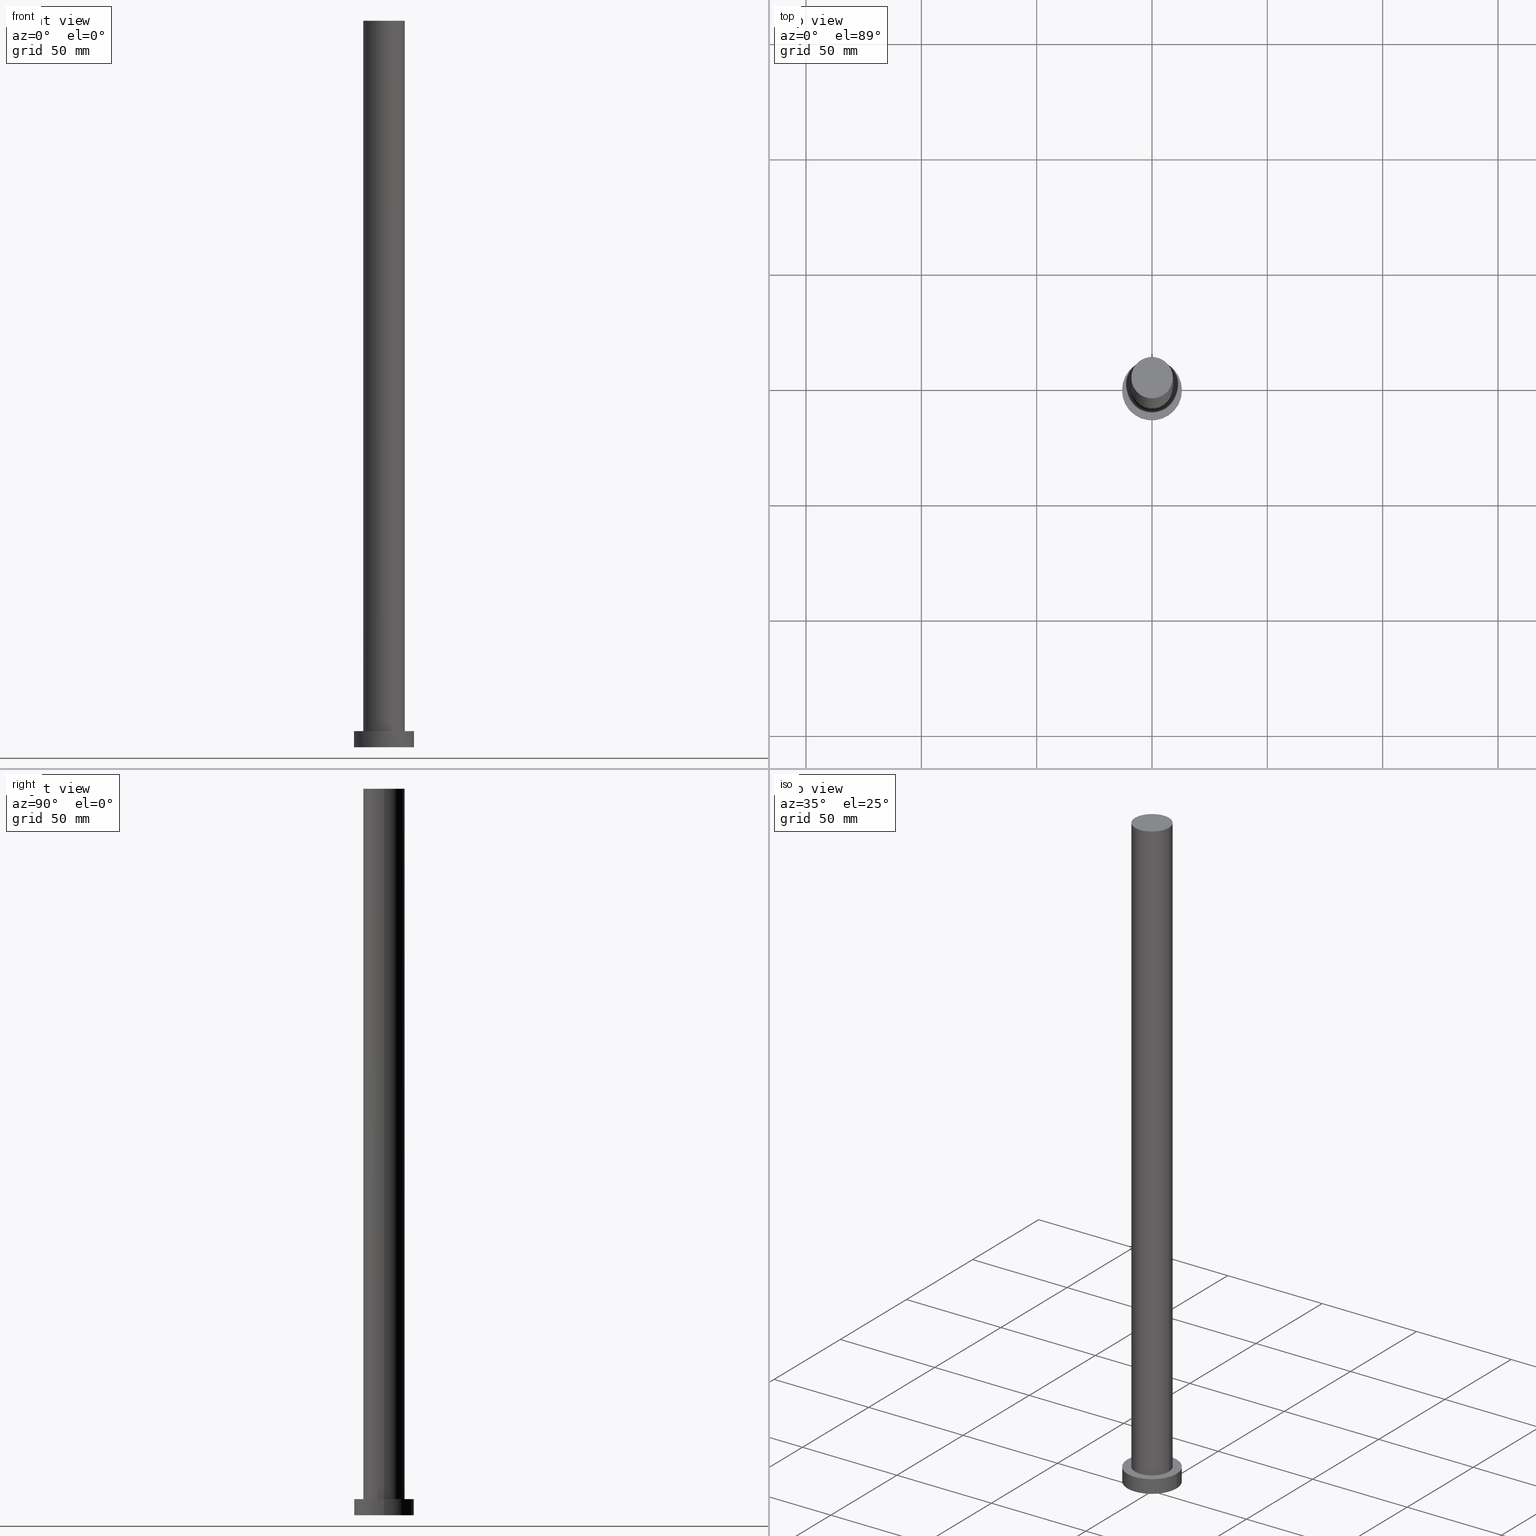
[diagram: canonical four-view strip — front | top / right | iso, engineering-drawing reading convention]
A machine part, canonical four-view strip (front | top / right | iso — engineering-drawing reading convention). The complete STEP part file that produces these views, byte-faithful:
ISO-10303-21;
HEADER;
FILE_DESCRIPTION (( 'STEP AP203' ),
    '1' );
FILE_NAME ('8545.STEP',
    '2023-02-13T08:43:15',
    ( '' ),
    ( '' ),
    'SwSTEP 2.0',
    'SolidWorks 2019',
    '' );
FILE_SCHEMA (( 'CONFIG_CONTROL_DESIGN' ));
ENDSEC;

DATA;
#1 = LOCAL_TIME ( 9, 43, 15.00000000000000000, #219 ) ;
#2 = CARTESIAN_POINT ( 'NONE',  ( 0.000000000000000000, 0.000000000000000000, 315.0000000000000000 ) ) ;
#3 = DIRECTION ( 'NONE',  ( 1.000000000000000000, 0.000000000000000000, 0.000000000000000000 ) ) ;
#4 = EDGE_CURVE ( 'NONE', #12, #50, #121, .T. ) ;
#5 = CARTESIAN_POINT ( 'NONE',  ( 0.000000000000000000, 0.000000000000000000, 7.000000000000000000 ) ) ;
#6 = LOCAL_TIME ( 9, 43, 15.00000000000000000, #26 ) ;
#7 = CARTESIAN_POINT ( 'NONE',  ( 0.000000000000000000, 0.000000000000000000, 7.000000000000000000 ) ) ;
#8 = UNCERTAINTY_MEASURE_WITH_UNIT (LENGTH_MEASURE( 1.000000000000000082E-05 ), #141, 'distance_accuracy_value', 'NONE');
#9 = APPLICATION_PROTOCOL_DEFINITION ( 'international standard', 'config_control_design', 1994, #27 ) ;
#10 = DIRECTION ( 'NONE',  ( 1.000000000000000000, 0.000000000000000000, 0.000000000000000000 ) ) ;
#11 = CARTESIAN_POINT ( 'NONE',  ( 9.000000000000000000, 1.102182119232617714E-15, 315.0000000000000000 ) ) ;
#12 = VERTEX_POINT ( 'NONE', #238 ) ;
#13 = AXIS2_PLACEMENT_3D ( 'NONE', #117, #249, #186 ) ;
#14 = DIRECTION ( 'NONE',  ( 0.000000000000000000, 0.000000000000000000, 1.000000000000000000 ) ) ;
#15 = SHAPE_DEFINITION_REPRESENTATION ( #122, #41 ) ;
#16 = ORIENTED_EDGE ( 'NONE', *, *, #176, .F. ) ;
#17 = DATE_TIME_ROLE ( 'classification_date' ) ;
#18 = ORIENTED_EDGE ( 'NONE', *, *, #107, .F. ) ;
#19 = AXIS2_PLACEMENT_3D ( 'NONE', #134, #165, #208 ) ;
#20 = LOCAL_TIME ( 9, 43, 15.00000000000000000, #151 ) ;
#21 = CARTESIAN_POINT ( 'NONE',  ( 0.000000000000000000, 0.000000000000000000, 0.000000000000000000 ) ) ;
#22 = VERTEX_POINT ( 'NONE', #43 ) ;
#23 = PERSON_AND_ORGANIZATION_ROLE ( 'creator' ) ;
#24 = CYLINDRICAL_SURFACE ( 'NONE', #60, 9.000000000000000000 ) ;
#25 = CARTESIAN_POINT ( 'NONE',  ( -13.00000000000000178, 0.000000000000000000, 7.000000000000000000 ) ) ;
#26 = COORDINATED_UNIVERSAL_TIME_OFFSET ( 1, 0, .AHEAD. ) ;
#27 = APPLICATION_CONTEXT ( 'configuration controlled 3d designs of mechanical parts and assemblies' ) ;
#28 = APPROVAL ( #130, 'NEUR�EN�' ) ;
#29 = CYLINDRICAL_SURFACE ( 'NONE', #91, 9.000000000000000000 ) ;
#30 = PERSON_AND_ORGANIZATION ( #52, #212 ) ;
#31 = DIRECTION ( 'NONE',  ( 1.000000000000000000, 0.000000000000000000, -0.000000000000000000 ) ) ;
#32 = DIRECTION ( 'NONE',  ( 0.000000000000000000, 0.000000000000000000, 1.000000000000000000 ) ) ;
#33 = PRODUCT_DEFINITION_FORMATION_WITH_SPECIFIED_SOURCE ( 'LIBOVOLN�', '', #158, .NOT_KNOWN. ) ;
#34 = ADVANCED_FACE ( 'NONE', ( #202 ), #24, .T. ) ;
#35 = CIRCLE ( 'NONE', #172, 13.00000000000000178 ) ;
#36 = EDGE_CURVE ( 'NONE', #149, #22, #35, .T. ) ;
#37 = ORIENTED_EDGE ( 'NONE', *, *, #204, .F. ) ;
#38 = ORIENTED_EDGE ( 'NONE', *, *, #197, .F. ) ;
#39 = DIRECTION ( 'NONE',  ( 0.000000000000000000, 0.000000000000000000, 1.000000000000000000 ) ) ;
#40 = DATE_AND_TIME ( #127, #1 ) ;
#41 = ADVANCED_BREP_SHAPE_REPRESENTATION ( '8545', ( #233, #200 ), #98 ) ;
#42 = AXIS2_PLACEMENT_3D ( 'NONE', #118, #76, #232 ) ;
#43 = CARTESIAN_POINT ( 'NONE',  ( 13.00000000000000178, 1.592040838891559293E-15, 0.000000000000000000 ) ) ;
#44 = DIRECTION ( 'NONE',  ( 1.000000000000000000, 0.000000000000000000, -0.000000000000000000 ) ) ;
#45 = LINE ( 'NONE', #11, #80 ) ;
#46 = ORIENTED_EDGE ( 'NONE', *, *, #4, .F. ) ;
#47 = EDGE_CURVE ( 'NONE', #189, #12, #160, .T. ) ;
#48 = APPROVAL_DATE_TIME ( #57, #109 ) ;
#49 = CARTESIAN_POINT ( 'NONE',  ( -13.00000000000000178, 0.000000000000000000, 7.000000000000000000 ) ) ;
#50 = VERTEX_POINT ( 'NONE', #111 ) ;
#51 = PERSON_AND_ORGANIZATION ( #52, #212 ) ;
#52 = PERSON ( 'NEUR�EN�', 'NEUR�EN�', 'NEUR�EN�', ('NEUR�EN�'), ('NEUR�EN�'), ('NEUR�EN�') ) ;
#53 = DIRECTION ( 'NONE',  ( -1.000000000000000000, 0.000000000000000000, 0.000000000000000000 ) ) ;
#54 = PERSON_AND_ORGANIZATION ( #52, #212 ) ;
#55 = DIRECTION ( 'NONE',  ( 0.000000000000000000, 0.000000000000000000, 1.000000000000000000 ) ) ;
#56 = EDGE_LOOP ( 'NONE', ( #179, #16 ) ) ;
#57 = DATE_AND_TIME ( #231, #6 ) ;
#58 = ORIENTED_EDGE ( 'NONE', *, *, #107, .T. ) ;
#59 = CC_DESIGN_APPROVAL ( #28, ( #77 ) ) ;
#60 = AXIS2_PLACEMENT_3D ( 'NONE', #2, #196, #104 ) ;
#61 = ORIENTED_EDGE ( 'NONE', *, *, #47, .T. ) ;
#62 = MECHANICAL_CONTEXT ( 'NONE', #142, 'mechanical' ) ;
#63 = DIRECTION ( 'NONE',  ( 1.000000000000000000, 0.000000000000000000, 0.000000000000000000 ) ) ;
#64 = CIRCLE ( 'NONE', #168, 9.000000000000000000 ) ;
#65 = APPLICATION_PROTOCOL_DEFINITION ( 'international standard', 'config_control_design', 1994, #142 ) ;
#66 = CARTESIAN_POINT ( 'NONE',  ( -9.000000000000000000, 0.000000000000000000, 315.0000000000000000 ) ) ;
#67 = CC_DESIGN_APPROVAL ( #193, ( #33 ) ) ;
#68 = CARTESIAN_POINT ( 'NONE',  ( 9.000000000000000000, 1.102182119232617714E-15, 315.0000000000000000 ) ) ;
#69 = FACE_BOUND ( 'NONE', #138, .T. ) ;
#70 = PLANE ( 'NONE',  #19 ) ;
#71 = VECTOR ( 'NONE', #84, 1000.000000000000000 ) ;
#72 = PRODUCT_RELATED_PRODUCT_CATEGORY ( 'detail', '', ( #158 ) ) ;
#73 = DIRECTION ( 'NONE',  ( -0.000000000000000000, -0.000000000000000000, -1.000000000000000000 ) ) ;
#74 = DIRECTION ( 'NONE',  ( -0.000000000000000000, -0.000000000000000000, -1.000000000000000000 ) ) ;
#75 = PERSON_AND_ORGANIZATION_ROLE ( 'design_supplier' ) ;
#76 = DIRECTION ( 'NONE',  ( 0.000000000000000000, 0.000000000000000000, 1.000000000000000000 ) ) ;
#77 = PRODUCT_DEFINITION ( 'NEZN�M�', '', #33, #85 ) ;
#78 = EDGE_LOOP ( 'NONE', ( #38, #18, #116, #170 ) ) ;
#79 = ORIENTED_EDGE ( 'NONE', *, *, #159, .F. ) ;
#80 = VECTOR ( 'NONE', #94, 1000.000000000000000 ) ;
#81 = DIRECTION ( 'NONE',  ( 0.000000000000000000, 0.000000000000000000, 1.000000000000000000 ) ) ;
#82 = VERTEX_POINT ( 'NONE', #205 ) ;
#83 = PERSON_AND_ORGANIZATION_ROLE ( 'design_owner' ) ;
#84 = DIRECTION ( 'NONE',  ( -0.000000000000000000, -0.000000000000000000, -1.000000000000000000 ) ) ;
#85 = DESIGN_CONTEXT ( 'detailed design', #27, 'design' ) ;
#86 = PERSON_AND_ORGANIZATION ( #52, #212 ) ;
#87 = AXIS2_PLACEMENT_3D ( 'NONE', #93, #241, #228 ) ;
#88 = CARTESIAN_POINT ( 'NONE',  ( 0.000000000000000000, 0.000000000000000000, 7.000000000000000000 ) ) ;
#89 = AXIS2_PLACEMENT_3D ( 'NONE', #244, #14, #148 ) ;
#90 = COORDINATED_UNIVERSAL_TIME_OFFSET ( 1, 0, .AHEAD. ) ;
#91 = AXIS2_PLACEMENT_3D ( 'NONE', #115, #73, #53 ) ;
#92 = LINE ( 'NONE', #143, #234 ) ;
#93 = CARTESIAN_POINT ( 'NONE',  ( 0.000000000000000000, 0.000000000000000000, 7.000000000000000000 ) ) ;
#94 = DIRECTION ( 'NONE',  ( -0.000000000000000000, -0.000000000000000000, -1.000000000000000000 ) ) ;
#95 = AXIS2_PLACEMENT_3D ( 'NONE', #7, #181, #224 ) ;
#96 = VERTEX_POINT ( 'NONE', #113 ) ;
#97 = DIRECTION ( 'NONE',  ( -0.000000000000000000, -0.000000000000000000, -1.000000000000000000 ) ) ;
#98 =( GEOMETRIC_REPRESENTATION_CONTEXT ( 3 ) GLOBAL_UNCERTAINTY_ASSIGNED_CONTEXT ( ( #8 ) ) GLOBAL_UNIT_ASSIGNED_CONTEXT ( ( #141, #152, #192 ) ) REPRESENTATION_CONTEXT ( 'NONE', 'WORKASPACE' ) );
#99 = EDGE_LOOP ( 'NONE', ( #215, #171, #174, #46 ) ) ;
#100 = ORIENTED_EDGE ( 'NONE', *, *, #195, .T. ) ;
#101 = LOCAL_TIME ( 9, 43, 15.00000000000000000, #90 ) ;
#102 = EDGE_LOOP ( 'NONE', ( #255, #169, #139, #79 ) ) ;
#103 = SECURITY_CLASSIFICATION ( '', '', #229 ) ;
#104 = DIRECTION ( 'NONE',  ( -1.000000000000000000, 0.000000000000000000, 0.000000000000000000 ) ) ;
#105 = DIRECTION ( 'NONE',  ( 0.000000000000000000, 0.000000000000000000, 1.000000000000000000 ) ) ;
#106 = PERSON_AND_ORGANIZATION ( #52, #212 ) ;
#107 = EDGE_CURVE ( 'NONE', #156, #96, #140, .T. ) ;
#108 = APPROVAL_STATUS ( 'not_yet_approved' ) ;
#109 = APPROVAL ( #247, 'NEUR�EN�' ) ;
#110 = DATE_AND_TIME ( #124, #101 ) ;
#111 = CARTESIAN_POINT ( 'NONE',  ( -9.000000000000000000, 0.000000000000000000, 7.000000000000000000 ) ) ;
#112 = APPROVAL_ROLE ( '' ) ;
#113 = CARTESIAN_POINT ( 'NONE',  ( 13.00000000000000178, 1.592040838891559293E-15, 7.000000000000000000 ) ) ;
#114 = PERSON_AND_ORGANIZATION_ROLE ( 'creator' ) ;
#115 = CARTESIAN_POINT ( 'NONE',  ( 0.000000000000000000, 0.000000000000000000, 315.0000000000000000 ) ) ;
#116 = ORIENTED_EDGE ( 'NONE', *, *, #159, .T. ) ;
#117 = CARTESIAN_POINT ( 'NONE',  ( 0.000000000000000000, 0.000000000000000000, 7.000000000000000000 ) ) ;
#118 = CARTESIAN_POINT ( 'NONE',  ( 0.000000000000000000, 0.000000000000000000, 315.0000000000000000 ) ) ;
#119 = ADVANCED_FACE ( 'NONE', ( #128 ), #182, .T. ) ;
#120 = EDGE_LOOP ( 'NONE', ( #58, #223 ) ) ;
#121 = LINE ( 'NONE', #66, #71 ) ;
#122 = PRODUCT_DEFINITION_SHAPE ( 'NONE', 'NONE',  #77 ) ;
#123 = ADVANCED_FACE ( 'NONE', ( #135 ), #146, .T. ) ;
#124 = CALENDAR_DATE ( 2023, 13, 2 ) ;
#125 = APPROVAL_PERSON_ORGANIZATION ( #86, #28, #112 ) ;
#126 = EDGE_CURVE ( 'NONE', #82, #50, #210, .T. ) ;
#127 = CALENDAR_DATE ( 2023, 13, 2 ) ;
#128 = FACE_OUTER_BOUND ( 'NONE', #164, .T. ) ;
#129 = CC_DESIGN_PERSON_AND_ORGANIZATION_ASSIGNMENT ( #30, #75, ( #33 ) ) ;
#130 = APPROVAL_STATUS ( 'not_yet_approved' ) ;
#131 = DIRECTION ( 'NONE',  ( 1.000000000000000000, 0.000000000000000000, 0.000000000000000000 ) ) ;
#132 = LINE ( 'NONE', #49, #190 ) ;
#133 = CC_DESIGN_PERSON_AND_ORGANIZATION_ASSIGNMENT ( #106, #83, ( #158 ) ) ;
#134 = CARTESIAN_POINT ( 'NONE',  ( 0.000000000000000000, 0.000000000000000000, 7.000000000000000000 ) ) ;
#135 = FACE_OUTER_BOUND ( 'NONE', #78, .T. ) ;
#136 = AXIS2_PLACEMENT_3D ( 'NONE', #188, #32, #10 ) ;
#137 = AXIS2_PLACEMENT_3D ( 'NONE', #191, #163, #31 ) ;
#138 = EDGE_LOOP ( 'NONE', ( #144, #155 ) ) ;
#139 = ORIENTED_EDGE ( 'NONE', *, *, #176, .T. ) ;
#140 = CIRCLE ( 'NONE', #254, 13.00000000000000178 ) ;
#141 =( LENGTH_UNIT ( ) NAMED_UNIT ( * ) SI_UNIT ( .MILLI., .METRE. ) );
#142 = APPLICATION_CONTEXT ( 'configuration controlled 3d designs of mechanical parts and assemblies' ) ;
#143 = CARTESIAN_POINT ( 'NONE',  ( 13.00000000000000178, 1.592040838891559293E-15, 7.000000000000000000 ) ) ;
#144 = ORIENTED_EDGE ( 'NONE', *, *, #195, .F. ) ;
#145 = DIRECTION ( 'NONE',  ( 0.000000000000000000, 0.000000000000000000, 1.000000000000000000 ) ) ;
#146 = CYLINDRICAL_SURFACE ( 'NONE', #95, 13.00000000000000178 ) ;
#147 = DATE_AND_TIME ( #167, #175 ) ;
#148 = DIRECTION ( 'NONE',  ( 1.000000000000000000, 0.000000000000000000, 0.000000000000000000 ) ) ;
#149 = VERTEX_POINT ( 'NONE', #248 ) ;
#150 = FACE_OUTER_BOUND ( 'NONE', #56, .T. ) ;
#151 = COORDINATED_UNIVERSAL_TIME_OFFSET ( 1, 0, .AHEAD. ) ;
#152 =( NAMED_UNIT ( * ) PLANE_ANGLE_UNIT ( ) SI_UNIT ( $, .RADIAN. ) );
#153 = ADVANCED_FACE ( 'NONE', ( #226 ), #203, .T. ) ;
#154 = PERSON_AND_ORGANIZATION ( #52, #212 ) ;
#155 = ORIENTED_EDGE ( 'NONE', *, *, #126, .F. ) ;
#156 = VERTEX_POINT ( 'NONE', #25 ) ;
#157 = CC_DESIGN_DATE_AND_TIME_ASSIGNMENT ( #250, #17, ( #103 ) ) ;
#158 = PRODUCT ( '8545', '8545', '', ( #62 ) ) ;
#159 = EDGE_CURVE ( 'NONE', #156, #149, #132, .T. ) ;
#160 = CIRCLE ( 'NONE', #178, 9.000000000000000000 ) ;
#161 = DIRECTION ( 'NONE',  ( 0.000000000000000000, 0.000000000000000000, 1.000000000000000000 ) ) ;
#162 = FACE_OUTER_BOUND ( 'NONE', #209, .T. ) ;
#163 = DIRECTION ( 'NONE',  ( 0.000000000000000000, 0.000000000000000000, 1.000000000000000000 ) ) ;
#164 = EDGE_LOOP ( 'NONE', ( #253, #61 ) ) ;
#165 = DIRECTION ( 'NONE',  ( 0.000000000000000000, 0.000000000000000000, 1.000000000000000000 ) ) ;
#166 = CALENDAR_DATE ( 2023, 13, 2 ) ;
#167 = CALENDAR_DATE ( 2023, 13, 2 ) ;
#168 = AXIS2_PLACEMENT_3D ( 'NONE', #5, #161, #131 ) ;
#169 = ORIENTED_EDGE ( 'NONE', *, *, #197, .T. ) ;
#170 = ORIENTED_EDGE ( 'NONE', *, *, #36, .T. ) ;
#171 = ORIENTED_EDGE ( 'NONE', *, *, #204, .T. ) ;
#172 = AXIS2_PLACEMENT_3D ( 'NONE', #177, #81, #63 ) ;
#173 = CIRCLE ( 'NONE', #42, 9.000000000000000000 ) ;
#174 = ORIENTED_EDGE ( 'NONE', *, *, #126, .T. ) ;
#175 = LOCAL_TIME ( 9, 43, 15.00000000000000000, #227 ) ;
#176 = EDGE_CURVE ( 'NONE', #22, #149, #239, .T. ) ;
#177 = CARTESIAN_POINT ( 'NONE',  ( 0.000000000000000000, 0.000000000000000000, 0.000000000000000000 ) ) ;
#178 = AXIS2_PLACEMENT_3D ( 'NONE', #218, #39, #211 ) ;
#179 = ORIENTED_EDGE ( 'NONE', *, *, #36, .F. ) ;
#180 = APPROVAL_ROLE ( '' ) ;
#181 = DIRECTION ( 'NONE',  ( -0.000000000000000000, -0.000000000000000000, -1.000000000000000000 ) ) ;
#182 = PLANE ( 'NONE',  #137 ) ;
#183 = CC_DESIGN_APPROVAL ( #109, ( #103 ) ) ;
#184 = PERSON_AND_ORGANIZATION ( #52, #212 ) ;
#185 = ADVANCED_FACE ( 'NONE', ( #162 ), #29, .T. ) ;
#186 = DIRECTION ( 'NONE',  ( 1.000000000000000000, 0.000000000000000000, 0.000000000000000000 ) ) ;
#187 = APPROVAL_ROLE ( '' ) ;
#188 = CARTESIAN_POINT ( 'NONE',  ( 0.000000000000000000, 0.000000000000000000, 0.000000000000000000 ) ) ;
#189 = VERTEX_POINT ( 'NONE', #68 ) ;
#190 = VECTOR ( 'NONE', #97, 1000.000000000000000 ) ;
#191 = CARTESIAN_POINT ( 'NONE',  ( 0.000000000000000000, 0.000000000000000000, 315.0000000000000000 ) ) ;
#192 =( NAMED_UNIT ( * ) SI_UNIT ( $, .STERADIAN. ) SOLID_ANGLE_UNIT ( ) );
#193 = APPROVAL ( #108, 'NEUR�EN�' ) ;
#194 = ORIENTED_EDGE ( 'NONE', *, *, #252, .F. ) ;
#195 = EDGE_CURVE ( 'NONE', #50, #82, #64, .T. ) ;
#196 = DIRECTION ( 'NONE',  ( -0.000000000000000000, -0.000000000000000000, -1.000000000000000000 ) ) ;
#197 = EDGE_CURVE ( 'NONE', #96, #22, #92, .T. ) ;
#198 = DATE_TIME_ROLE ( 'creation_date' ) ;
#199 = CC_DESIGN_PERSON_AND_ORGANIZATION_ASSIGNMENT ( #243, #23, ( #77 ) ) ;
#200 = AXIS2_PLACEMENT_3D ( 'NONE', #21, #105, #3 ) ;
#201 = CC_DESIGN_PERSON_AND_ORGANIZATION_ASSIGNMENT ( #154, #213, ( #103 ) ) ;
#202 = FACE_OUTER_BOUND ( 'NONE', #99, .T. ) ;
#203 = CYLINDRICAL_SURFACE ( 'NONE', #87, 13.00000000000000178 ) ;
#204 = EDGE_CURVE ( 'NONE', #189, #82, #45, .T. ) ;
#205 = CARTESIAN_POINT ( 'NONE',  ( 9.000000000000000000, 1.102182119232617714E-15, 7.000000000000000000 ) ) ;
#206 = AXIS2_PLACEMENT_3D ( 'NONE', #222, #55, #44 ) ;
#207 = DIRECTION ( 'NONE',  ( 1.000000000000000000, 0.000000000000000000, 0.000000000000000000 ) ) ;
#208 = DIRECTION ( 'NONE',  ( 1.000000000000000000, 0.000000000000000000, -0.000000000000000000 ) ) ;
#209 = EDGE_LOOP ( 'NONE', ( #37, #194, #216, #100 ) ) ;
#210 = CIRCLE ( 'NONE', #13, 9.000000000000000000 ) ;
#211 = DIRECTION ( 'NONE',  ( 1.000000000000000000, 0.000000000000000000, 0.000000000000000000 ) ) ;
#212 = ORGANIZATION ( 'NEUR�EN�', 'NEUR�EN�', '' ) ;
#213 = PERSON_AND_ORGANIZATION_ROLE ( 'classification_officer' ) ;
#214 = APPROVAL_PERSON_ORGANIZATION ( #184, #193, #180 ) ;
#215 = ORIENTED_EDGE ( 'NONE', *, *, #47, .F. ) ;
#216 = ORIENTED_EDGE ( 'NONE', *, *, #4, .T. ) ;
#217 = CC_DESIGN_DATE_AND_TIME_ASSIGNMENT ( #110, #198, ( #77 ) ) ;
#218 = CARTESIAN_POINT ( 'NONE',  ( 0.000000000000000000, 0.000000000000000000, 315.0000000000000000 ) ) ;
#219 = COORDINATED_UNIVERSAL_TIME_OFFSET ( 1, 0, .AHEAD. ) ;
#220 = APPROVAL_DATE_TIME ( #40, #28 ) ;
#221 = CIRCLE ( 'NONE', #89, 13.00000000000000178 ) ;
#222 = CARTESIAN_POINT ( 'NONE',  ( 0.000000000000000000, 0.000000000000000000, 0.000000000000000000 ) ) ;
#223 = ORIENTED_EDGE ( 'NONE', *, *, #236, .T. ) ;
#224 = DIRECTION ( 'NONE',  ( -1.000000000000000000, 0.000000000000000000, 0.000000000000000000 ) ) ;
#225 = APPROVAL_DATE_TIME ( #147, #193 ) ;
#226 = FACE_OUTER_BOUND ( 'NONE', #102, .T. ) ;
#227 = COORDINATED_UNIVERSAL_TIME_OFFSET ( 1, 0, .AHEAD. ) ;
#228 = DIRECTION ( 'NONE',  ( -1.000000000000000000, 0.000000000000000000, 0.000000000000000000 ) ) ;
#229 = SECURITY_CLASSIFICATION_LEVEL ( 'unclassified' ) ;
#230 = PLANE ( 'NONE',  #206 ) ;
#231 = CALENDAR_DATE ( 2023, 13, 2 ) ;
#232 = DIRECTION ( 'NONE',  ( 1.000000000000000000, 0.000000000000000000, 0.000000000000000000 ) ) ;
#233 = MANIFOLD_SOLID_BREP ( 'P�idat vysunut�m3', #235 ) ;
#234 = VECTOR ( 'NONE', #74, 1000.000000000000000 ) ;
#235 = CLOSED_SHELL ( 'NONE', ( #34, #153, #123, #237, #246, #185, #119 ) ) ;
#236 = EDGE_CURVE ( 'NONE', #96, #156, #221, .T. ) ;
#237 = ADVANCED_FACE ( 'NONE', ( #69, #245 ), #70, .T. ) ;
#238 = CARTESIAN_POINT ( 'NONE',  ( -9.000000000000000000, 0.000000000000000000, 315.0000000000000000 ) ) ;
#239 = CIRCLE ( 'NONE', #136, 13.00000000000000178 ) ;
#240 = CC_DESIGN_SECURITY_CLASSIFICATION ( #103, ( #33 ) ) ;
#241 = DIRECTION ( 'NONE',  ( -0.000000000000000000, -0.000000000000000000, -1.000000000000000000 ) ) ;
#242 = APPROVAL_PERSON_ORGANIZATION ( #54, #109, #187 ) ;
#243 = PERSON_AND_ORGANIZATION ( #52, #212 ) ;
#244 = CARTESIAN_POINT ( 'NONE',  ( 0.000000000000000000, 0.000000000000000000, 7.000000000000000000 ) ) ;
#245 = FACE_OUTER_BOUND ( 'NONE', #120, .T. ) ;
#246 = ADVANCED_FACE ( 'NONE', ( #150 ), #230, .F. ) ;
#247 = APPROVAL_STATUS ( 'not_yet_approved' ) ;
#248 = CARTESIAN_POINT ( 'NONE',  ( -13.00000000000000178, 0.000000000000000000, 0.000000000000000000 ) ) ;
#249 = DIRECTION ( 'NONE',  ( 0.000000000000000000, 0.000000000000000000, 1.000000000000000000 ) ) ;
#250 = DATE_AND_TIME ( #166, #20 ) ;
#251 = CC_DESIGN_PERSON_AND_ORGANIZATION_ASSIGNMENT ( #51, #114, ( #33 ) ) ;
#252 = EDGE_CURVE ( 'NONE', #12, #189, #173, .T. ) ;
#253 = ORIENTED_EDGE ( 'NONE', *, *, #252, .T. ) ;
#254 = AXIS2_PLACEMENT_3D ( 'NONE', #88, #145, #207 ) ;
#255 = ORIENTED_EDGE ( 'NONE', *, *, #236, .F. ) ;
ENDSEC;
END-ISO-10303-21;
